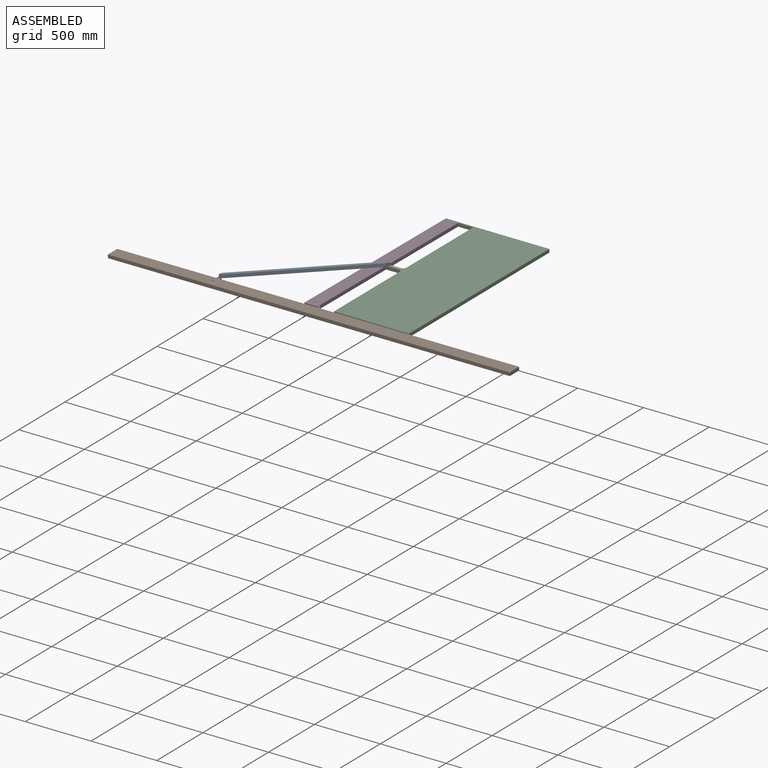
[diagram: assembled view]
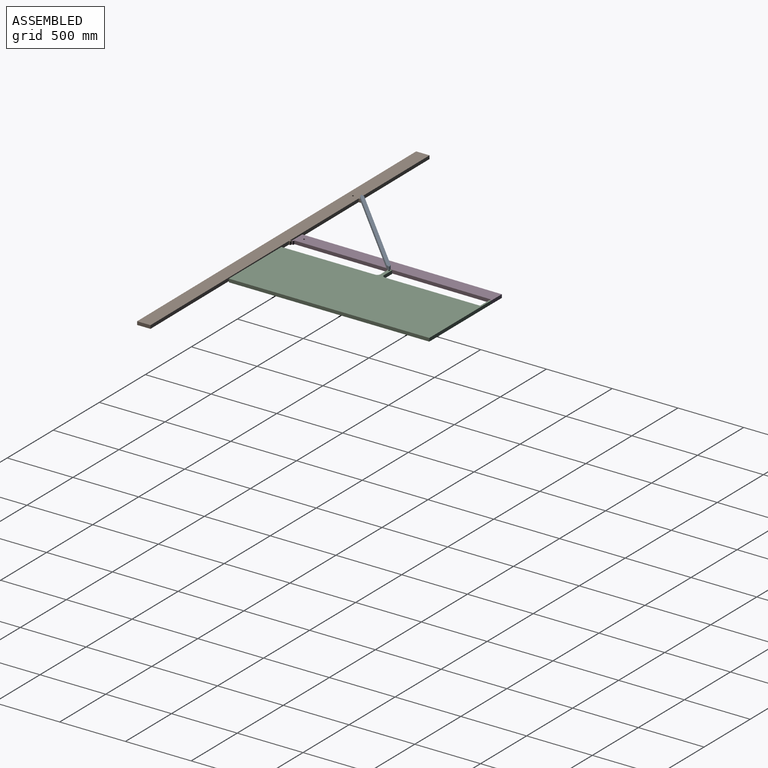
[diagram: assembled view, second angle]
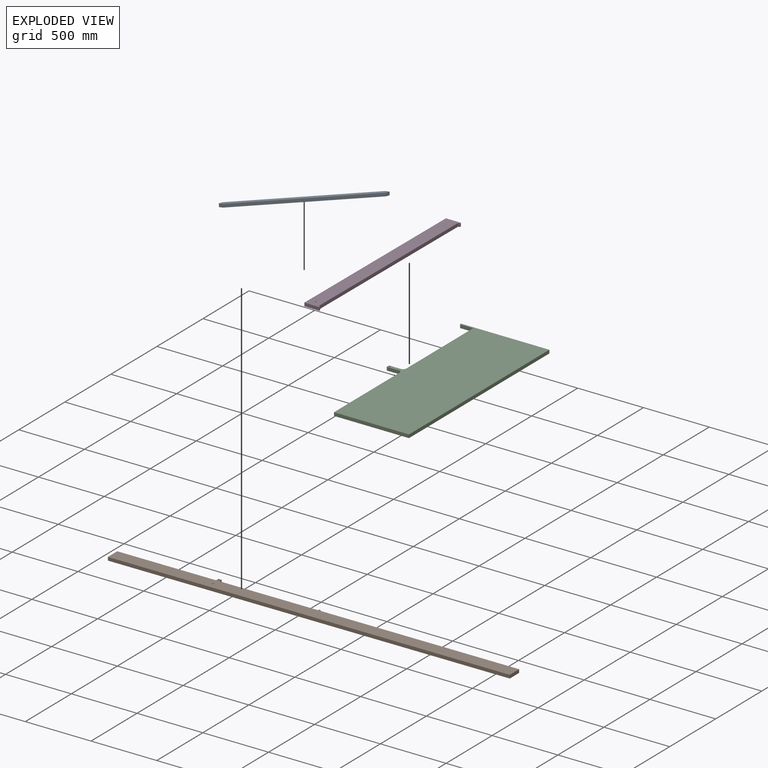
[diagram: exploded view]
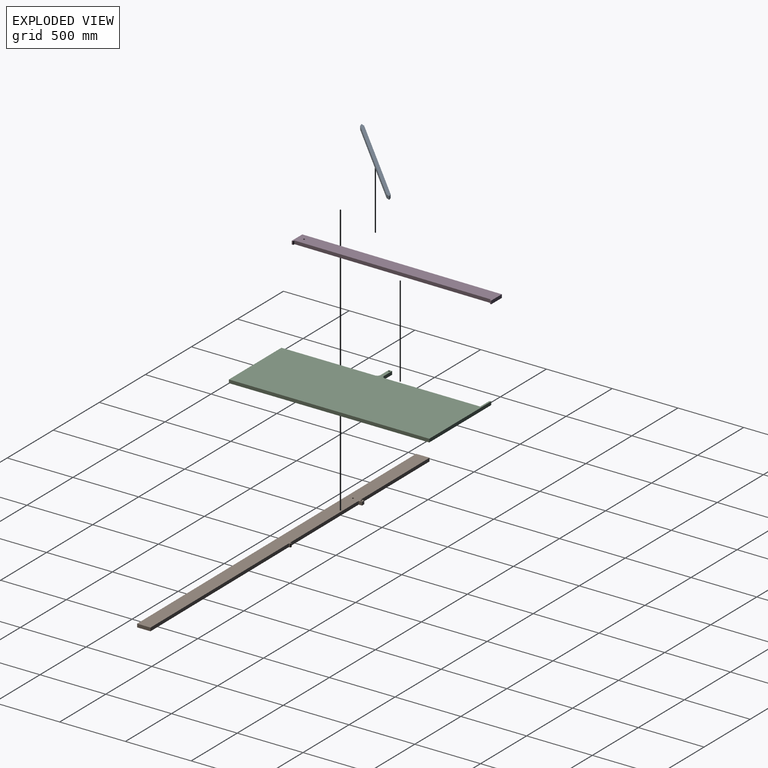
[diagram: exploded view, second angle]
ASSEMBLY  parts=4 mates=4
PART A: 8 faces, bbox 25.4x1077.7x25.4 mm
  f0: plane 25.4x25.4mm, normal (0.89,0.45,0), area 721.3mm2, adj f1,f5,f6,f7
  f1: plane 25.4x25.4mm, normal (-0.89,0.45,0), area 721.3mm2, adj f0,f2,f6,f7
  f2: plane 1026.92x25.4mm, normal (-1,0,0), area 26083.8mm2, adj f1,f3,f6,f7
  f3: plane 25.4x25.4mm, normal (-0.89,-0.45,0), area 721.3mm2, adj f2,f4,f6,f7
  f4: plane 25.4x25.4mm, normal (0.89,-0.45,0), area 721.3mm2, adj f3,f5,f6,f7
  f5: plane 1026.92x25.4mm, normal (1,0,0), area 26083.8mm2, adj f0,f4,f6,f7
  f6: plane 1077.72x25.4mm, normal (0,0,1), area 26729mm2, adj f0,f1,f2,f3,f4,f5
  f7: plane 1077.72x25.4mm, normal (0,0,-1), area 26729mm2, adj f0,f1,f2,f3,f4,f5
PART B: 17 faces, bbox 3048x127x25.4 mm
  f0: plane 101.6x25.4mm, normal (-1,0,0), area 2580.6mm2, adj f1,f14,f15,f16
  f1: plane 3048x25.4mm, normal (0,-1,0), area 77419.2mm2, adj f0,f2,f15,f16
  f2: plane 101.6x25.4mm, normal (1,0,0), area 2580.6mm2, adj f1,f3,f15,f16
  f3: plane 1511.3x25.4mm, normal (0,1,0), area 38387mm2, adj f2,f4,f15,f16
  f4: plane 25.4x6.35mm, normal (1,0,0), area 161.3mm2, adj f3,f5,f15,f16
  f5: cylinder r=6.35mm len=25.4mm, axis (0,0,-1), area 253.4mm2, adj f4,f6,f15,f16
  f6: plane 25.4x6.35mm, normal (0,1,0), area 161.3mm2, adj f5,f7,f15,f16
  f7: plane 25.4x12.7mm, normal (-1,0,0), area 322.6mm2, adj f6,f8,f15,f16
  f8: plane 749.3x25.4mm, normal (0,1,0), area 19032.2mm2, adj f7,f9,f15,f16
  f9: plane 25.4x25.4mm, normal (1,0,0), area 645.2mm2, adj f8,f10,f15,f16
  f10: plane 25.4x25.4mm, normal (0,1,0), area 645.2mm2, adj f9,f11,f15,f16
  f11: plane 25.4x25.4mm, normal (-1,0,0), area 645.2mm2, adj f10,f14,f15,f16
  f12: cylinder r=6.35mm len=25.4mm, axis (0,0,-1), area 1013.4mm2, adj f15,f16
  f13: cylinder r=6.35mm len=25.4mm, axis (0,0,-1), area 1013.4mm2, adj f15,f16
  f14: plane 749.3x25.4mm, normal (0,1,0), area 19032.2mm2, adj f0,f11,f15,f16
  f15: plane 3048x127mm, normal (0,0,1), area 310221.2mm2, adj f0,f1,f2,f3,f4,f5,f6,f7
  f16: plane 3048x127mm, normal (0,0,-1), area 310221.2mm2, adj f0,f1,f2,f3,f4,f5,f6,f7
PART C: 16 faces, bbox 685.2x1524x25.4 mm
  f0: plane 25.4x6.35mm, normal (-1,0,0), area 161.3mm2, adj f1,f13,f14,f15
  f1: cylinder r=6.35mm len=25.4mm, axis (0,0,-1), area 253.4mm2, adj f0,f2,f14,f15
  f2: plane 95.25x25.4mm, normal (0,-1,0), area 2419.3mm2, adj f1,f3,f14,f15
  f3: plane 723.9x25.4mm, normal (-1,0,0), area 18387.1mm2, adj f2,f4,f14,f15
  f4: cylinder r=25.4mm len=25.4mm, axis (0,0,-1), area 1013.4mm2, adj f3,f5,f14,f15
  f5: plane 88.9x25.4mm, normal (0,1,0), area 2258.1mm2, adj f4,f6,f14,f15
  f6: plane 25.4x25.4mm, normal (-1,0,0), area 645.2mm2, adj f5,f7,f14,f15
  f7: plane 88.9x25.4mm, normal (0,-1,0), area 2258.1mm2, adj f6,f8,f14,f15
  f8: cylinder r=25.4mm len=25.4mm, axis (0,0,-1), area 1013.4mm2, adj f7,f9,f14,f15
  f9: plane 711.2x25.4mm, normal (-1,0,0), area 18064.5mm2, adj f8,f10,f14,f15
  f10: plane 570.85x25.4mm, normal (0,-1,0), area 14499.6mm2, adj f9,f11,f14,f15
  f11: plane 1524x25.4mm, normal (1,0,0), area 38709.6mm2, adj f10,f13,f14,f15
  f12: cylinder r=6.35mm len=25.4mm, axis (0,0,-1), area 1013.4mm2, adj f14,f15
  f13: plane 672.45x25.4mm, normal (0,1,0), area 17080.3mm2, adj f0,f11,f14,f15
  f14: plane 1524x685.15mm, normal (0,0,1), area 874313.7mm2, adj f0,f1,f2,f3,f4,f5,f6,f7
  f15: plane 1524x685.15mm, normal (0,0,-1), area 874313.7mm2, adj f0,f1,f2,f3,f4,f5,f6,f7
PART D: 13 faces, bbox 114.3x1524x25.4 mm
  f0: plane 114.3x25.4mm, normal (0,-1,0), area 2903.2mm2, adj f1,f10,f11,f12
  f1: plane 25.4x6.35mm, normal (1,0,0), area 161.3mm2, adj f0,f2,f11,f12
  f2: cylinder r=6.35mm len=25.4mm, axis (0,0,-1), area 253.4mm2, adj f1,f3,f11,f12
  f3: plane 25.4x6.35mm, normal (0,1,0), area 161.3mm2, adj f2,f4,f11,f12
  f4: plane 1498.6x25.4mm, normal (1,0,0), area 38064.4mm2, adj f3,f5,f11,f12
  f5: plane 25.4x6.35mm, normal (0,-1,0), area 161.3mm2, adj f4,f6,f11,f12
  f6: cylinder r=6.35mm len=25.4mm, axis (0,0,-1), area 253.4mm2, adj f5,f7,f11,f12
  f7: plane 25.4x6.35mm, normal (1,0,0), area 161.3mm2, adj f6,f8,f11,f12
  f8: plane 114.3x25.4mm, normal (0,1,0), area 2903.2mm2, adj f7,f10,f11,f12
  f9: cylinder r=6.35mm len=25.4mm, axis (0,0,-1), area 1013.4mm2, adj f11,f12
  f10: plane 1524x25.4mm, normal (-1,0,0), area 38709.6mm2, adj f0,f8,f11,f12
  f11: plane 1524x114.3mm, normal (0,0,1), area 155017mm2, adj f0,f1,f2,f3,f4,f5,f6,f7
  f12: plane 1524x114.3mm, normal (0,0,-1), area 155017mm2, adj f0,f1,f2,f3,f4,f5,f6,f7
PLACE A rot(axis=(0,0,-1),45.7deg) t=(217,-1760.3,471.08)mm
PLACE B rot(axis=(0,0,1),0.2deg) t=(627.25,-384.87,445.68)mm
PLACE C t=(-874.71,-732.29,445.68)mm fixed
PLACE D rot(axis=(0,0,-1),0.4deg) t=(-364.34,-732.17,445.68)mm
MATE revolute A.f7 <-> C.f12  axis (0,0,1) through (-341.95,17.01,471.08)mm
MATE revolute D.f11 <-> B.f15  axis (0,0,-1) through (-351.64,-732.25,471.08)mm
MATE revolute A.f7 <-> B.f13  axis (0,0,1) through (-1113.64,-735.3,471.08)mm
MATE revolute D.f11 <-> C.f14  axis (0,0,-1) through (-341.95,791.71,471.08)mm
